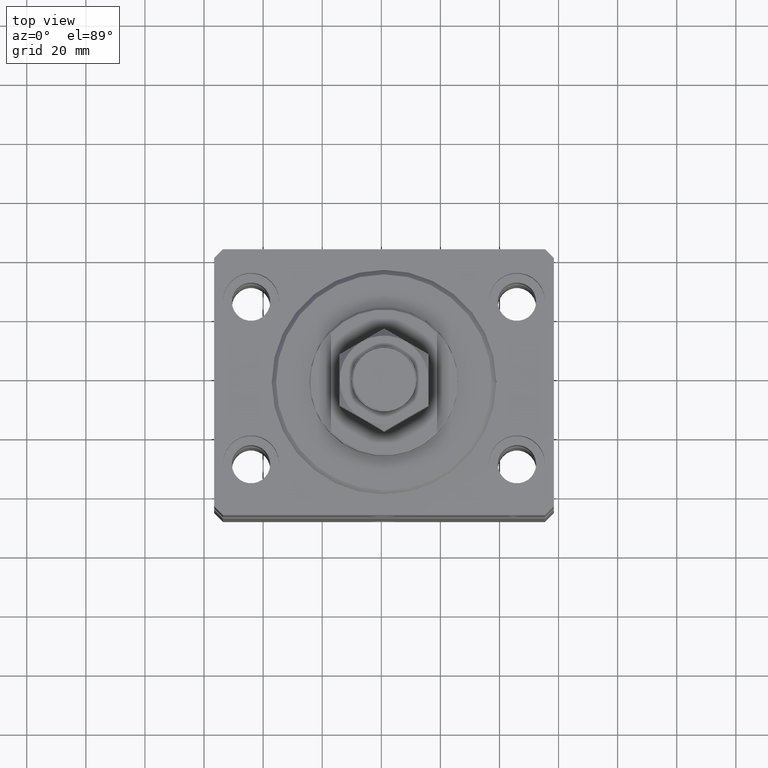
[diagram: clean part render]
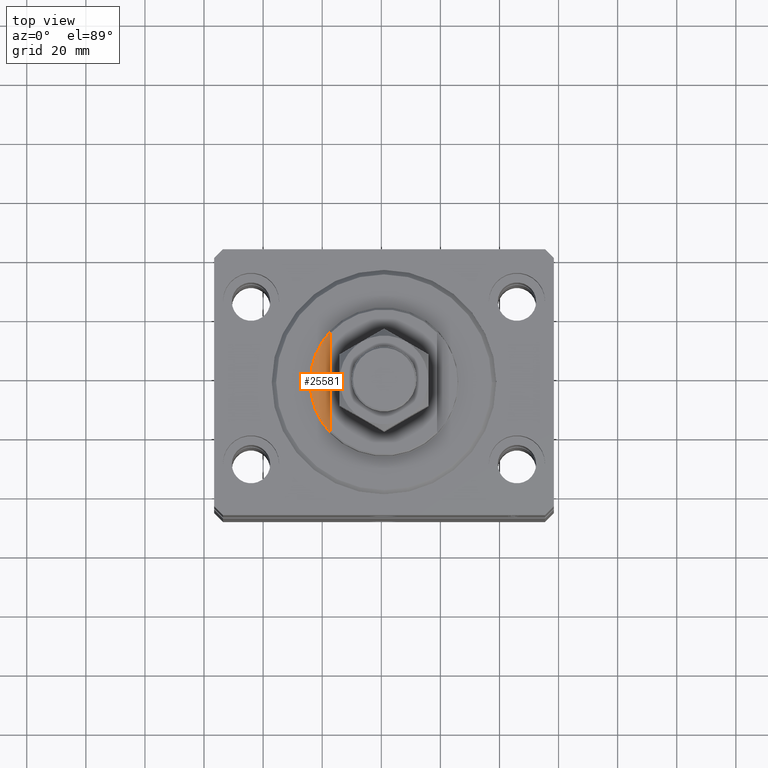
[diagram: same view with one face highlighted and labeled with its STEP entity id]
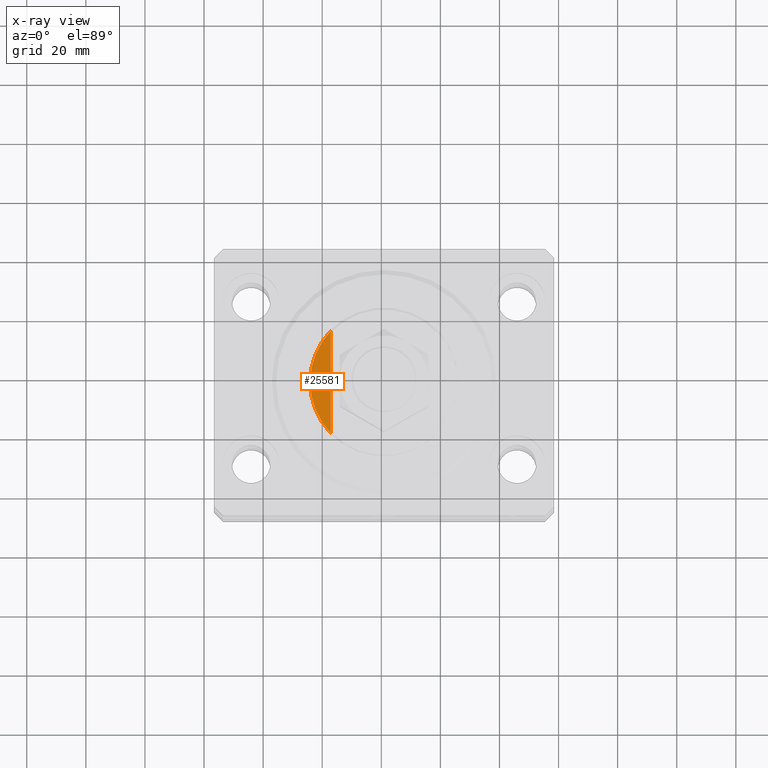
[diagram: x-ray of the same camera — body ghosted, the highlighted face saturated]
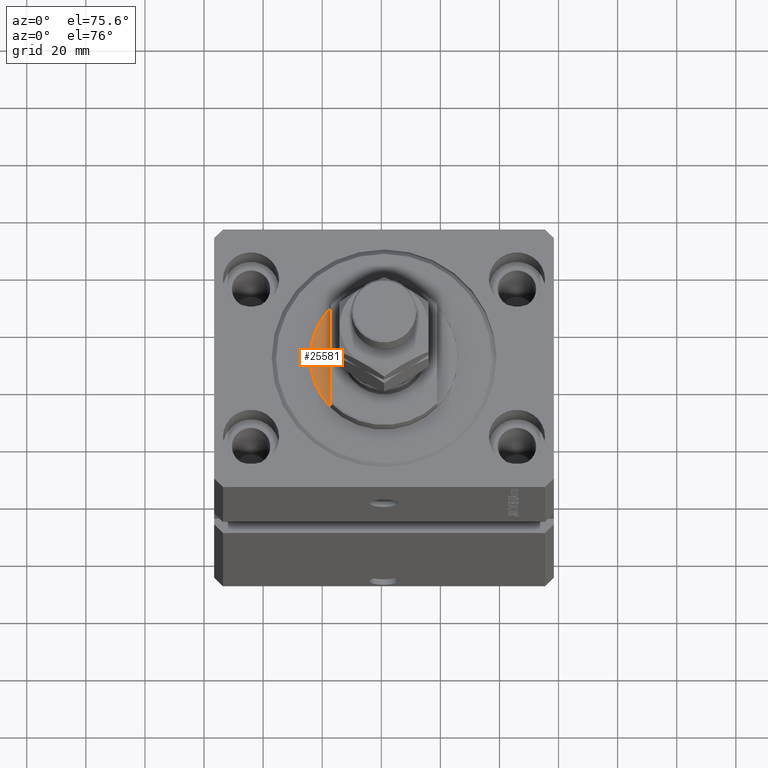
[diagram: same view with one face highlighted and labeled with its STEP entity id]
A machine part, top view. The second image highlights one B-rep face of the part: STEP entity #25581.
The next image is the same camera in x-ray: the body ghosted, the highlighted face saturated — about 0% of this face is hidden behind the body in this view.
A second angle (auxiliary view) of the same face is appended — the face is thin or edge-on in the first view.
In plain terms, the highlighted planar face has unit normal (0, 0, 1).
Its self-contained STEP definition (entity closure, byte-faithful):
#2397 = VERTEX_POINT ( 'NONE', #33233 ) ;
#2604 = AXIS2_PLACEMENT_3D ( 'NONE', #11940, #22696, #15134 ) ;
#7857 = AXIS2_PLACEMENT_3D ( 'NONE', #43506, #25016, #31817 ) ;
#11095 = ORIENTED_EDGE ( 'NONE', *, *, #43518, .F. ) ;
#11940 = CARTESIAN_POINT ( 'NONE',  ( 0.000000000000000000, 0.000000000000000000, -1.000000000000000000 ) ) ;
#12746 = VERTEX_POINT ( 'NONE', #19508 ) ;
#12974 = LINE ( 'NONE', #28316, #39883 ) ;
#13716 = DIRECTION ( 'NONE',  ( -1.000000000000000000, 0.000000000000000000, 0.000000000000000000 ) ) ;
#15134 = DIRECTION ( 'NONE',  ( -1.000000000000000000, 0.000000000000000000, 0.000000000000000000 ) ) ;
#16290 = FACE_OUTER_BOUND ( 'NONE', #44873, .T. ) ;
#19508 = CARTESIAN_POINT ( 'NONE',  ( 25.00000000000000000, 0.000000000000000000, -1.000000000000000000 ) ) ;
#22696 = DIRECTION ( 'NONE',  ( 0.000000000000000000, 0.000000000000000000, -1.000000000000000000 ) ) ;
#24424 = DIRECTION ( 'NONE',  ( 0.000000000000000000, -1.000000000000000000, -0.000000000000000000 ) ) ;
#25016 = DIRECTION ( 'NONE',  ( 0.000000000000000000, 0.000000000000000000, -1.000000000000000000 ) ) ;
#25581 = ADVANCED_FACE ( 'NONE', ( #16290 ), #27480, .T. ) ;
#25743 = CIRCLE ( 'NONE', #34307, 25.00000000000000000 ) ;
#27480 = PLANE ( 'NONE',  #7857 ) ;
#27569 = ORIENTED_EDGE ( 'NONE', *, *, #47355, .T. ) ;
#28316 = CARTESIAN_POINT ( 'NONE',  ( 18.00000000000000000, -41.24318125460256113, -1.000000000000000000 ) ) ;
#28571 = CARTESIAN_POINT ( 'NONE',  ( 0.000000000000000000, 0.000000000000000000, -1.000000000000000000 ) ) ;
#29806 = EDGE_CURVE ( 'NONE', #12746, #2397, #25743, .T. ) ;
#31817 = DIRECTION ( 'NONE',  ( 1.000000000000000000, 0.000000000000000000, 0.000000000000000000 ) ) ;
#32822 = ORIENTED_EDGE ( 'NONE', *, *, #29806, .T. ) ;
#33233 = CARTESIAN_POINT ( 'NONE',  ( 18.00000000000000000, -17.34935157289747920, -1.000000000000000000 ) ) ;
#34307 = AXIS2_PLACEMENT_3D ( 'NONE', #28571, #47055, #13716 ) ;
#39883 = VECTOR ( 'NONE', #24424, 1000.000000000000000 ) ;
#41464 = CIRCLE ( 'NONE', #2604, 25.00000000000000000 ) ;
#43506 = CARTESIAN_POINT ( 'NONE',  ( 0.000000000000000000, 0.000000000000000000, -1.000000000000000000 ) ) ;
#43518 = EDGE_CURVE ( 'NONE', #45231, #2397, #12974, .T. ) ;
#44873 = EDGE_LOOP ( 'NONE', ( #27569, #32822, #11095 ) ) ;
#45231 = VERTEX_POINT ( 'NONE', #46119 ) ;
#46119 = CARTESIAN_POINT ( 'NONE',  ( 18.00000000000000000, 17.34935157289747920, -1.000000000000000000 ) ) ;
#47055 = DIRECTION ( 'NONE',  ( 0.000000000000000000, 0.000000000000000000, -1.000000000000000000 ) ) ;
#47355 = EDGE_CURVE ( 'NONE', #45231, #12746, #41464, .T. ) ;